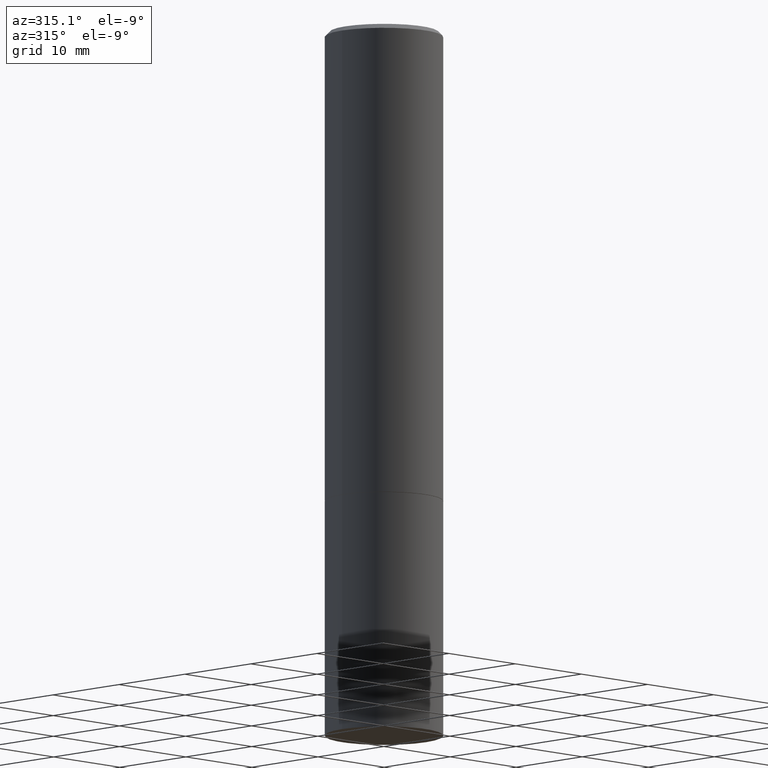
[diagram: clean part render]
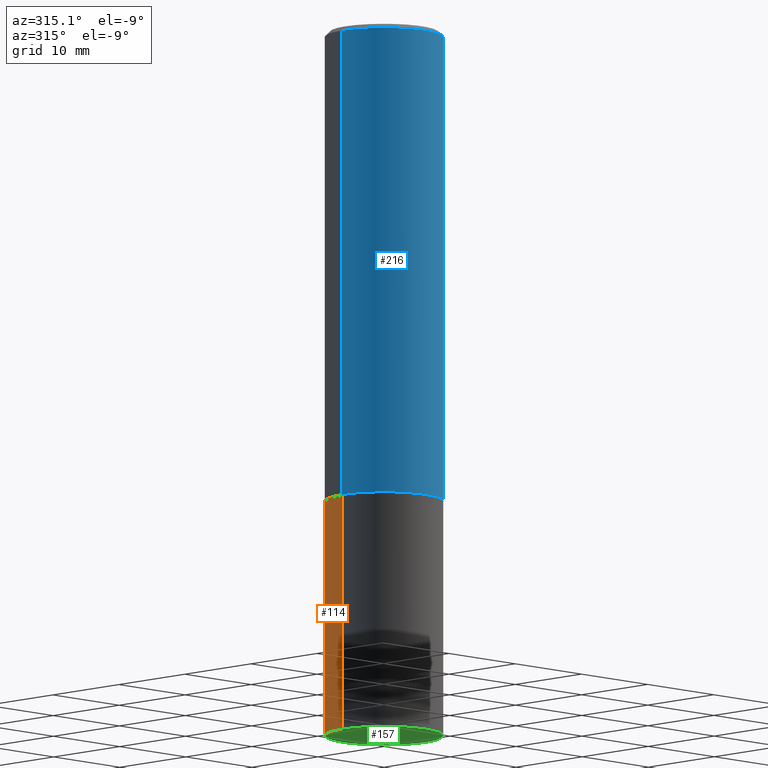
[diagram: same view with three faces highlighted in distinct colors, each labeled with its STEP entity id]
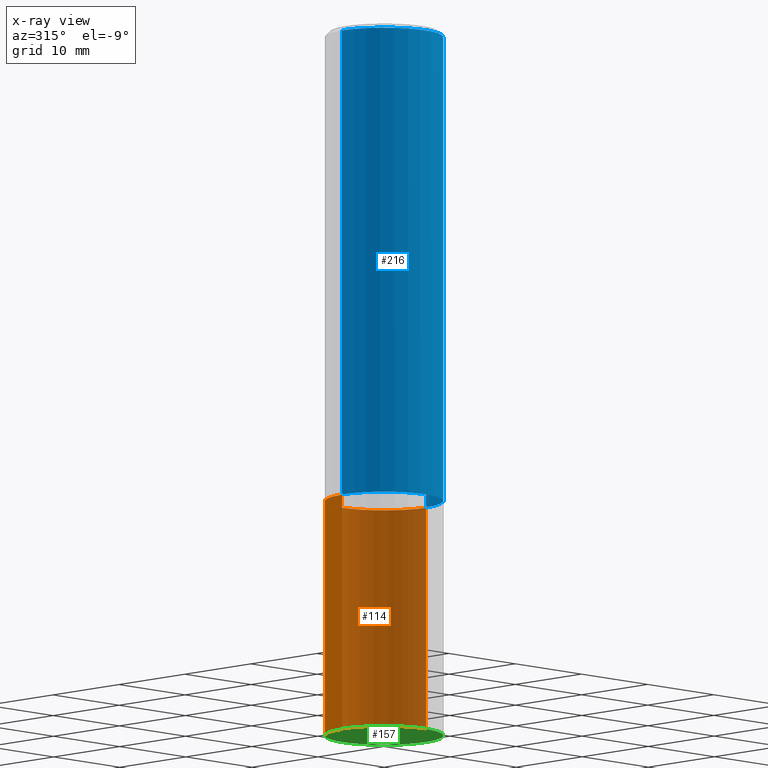
[diagram: x-ray of the same camera — body ghosted, the three highlighted faces saturated]
A machine part, auxiliary view with three faces highlighted in distinct colors.
The next image is the same camera in x-ray (body ghosted, the three faces saturated) — at least one of them is partly hidden behind the body in this view.
Their STEP definitions:

[orange] entity #114 — the highlighted cylindrical surface (partial cylindrical patch) has radius 6.35 mm, axis along (-0, 0, 1).
#8 = DIRECTION ( 'NONE',  ( -2.445468806185136597E-29, 3.491481338843145583E-15, 1.000000000000000000 ) ) ;
#9 = DIRECTION ( 'NONE',  ( -2.445468806185136877E-29, 3.491481338843145188E-15, 1.000000000000000000 ) ) ;
#40 = DIRECTION ( 'NONE',  ( 1.000000000000000000, -6.982962677686262766E-15, 0.000000000000000000 ) ) ;
#51 = CARTESIAN_POINT ( 'NONE',  ( -0.2500000000000000000, -6.952346507707613689E-15, -2.000000000000000444 ) ) ;
#53 = VERTEX_POINT ( 'NONE', #271 ) ;
#60 = VECTOR ( 'NONE', #9, 39.37007874015748143 ) ;
#81 = CARTESIAN_POINT ( 'NONE',  ( 0.000000000000000000, 0.000000000000000000, 0.000000000000000000 ) ) ;
#99 = VERTEX_POINT ( 'NONE', #51 ) ;
#110 = CIRCLE ( 'NONE', #197, 0.2500000000000000000 ) ;
#114 = ADVANCED_FACE ( 'NONE', ( #137 ), #336, .T. ) ;
#119 = VERTEX_POINT ( 'NONE', #343 ) ;
#132 = ORIENTED_EDGE ( 'NONE', *, *, #243, .T. ) ;
#137 = FACE_OUTER_BOUND ( 'NONE', #176, .T. ) ;
#141 = CARTESIAN_POINT ( 'NONE',  ( 0.2500000000000000000, -1.745740669421566678E-15, 1.219044193948983948E-29 ) ) ;
#166 = AXIS2_PLACEMENT_3D ( 'NONE', #295, #8, #40 ) ;
#169 = EDGE_CURVE ( 'NONE', #119, #53, #224, .T. ) ;
#170 = DIRECTION ( 'NONE',  ( -2.445468806185136877E-29, 3.491481338843145188E-15, 1.000000000000000000 ) ) ;
#176 = EDGE_LOOP ( 'NONE', ( #132, #322, #212, #356 ) ) ;
#179 = CARTESIAN_POINT ( 'NONE',  ( -0.2500000000000000000, 1.776356839400250465E-15, -1.229733772563726445E-29 ) ) ;
#196 = DIRECTION ( 'NONE',  ( -2.445468806185136597E-29, 3.491481338843145583E-15, 1.000000000000000000 ) ) ;
#197 = AXIS2_PLACEMENT_3D ( 'NONE', #232, #320, #346 ) ;
#212 = ORIENTED_EDGE ( 'NONE', *, *, #272, .F. ) ;
#213 = CARTESIAN_POINT ( 'NONE',  ( -0.2500000000000000000, -6.952346507707613689E-15, -3.000000000000000444 ) ) ;
#224 = LINE ( 'NONE', #141, #226 ) ;
#226 = VECTOR ( 'NONE', #170, 39.37007874015748143 ) ;
#228 = DIRECTION ( 'NONE',  ( 1.000000000000000000, -6.982962677686266711E-15, 4.876176775795935793E-29 ) ) ;
#232 = CARTESIAN_POINT ( 'NONE',  ( 4.890937612370273754E-29, -6.982962677686291954E-15, -2.000000000000000444 ) ) ;
#243 = EDGE_CURVE ( 'NONE', #119, #268, #314, .T. ) ;
#268 = VERTEX_POINT ( 'NONE', #213 ) ;
#271 = CARTESIAN_POINT ( 'NONE',  ( 0.2500000000000000000, -8.728703347107858632E-15, -2.000000000000000444 ) ) ;
#272 = EDGE_CURVE ( 'NONE', #53, #99, #110, .T. ) ;
#289 = LINE ( 'NONE', #179, #60 ) ;
#295 = CARTESIAN_POINT ( 'NONE',  ( 7.336406418555409790E-29, -1.047444401652943635E-14, -3.000000000000000444 ) ) ;
#314 = CIRCLE ( 'NONE', #166, 0.2500000000000000000 ) ;
#318 = AXIS2_PLACEMENT_3D ( 'NONE', #81, #196, #228 ) ;
#320 = DIRECTION ( 'NONE',  ( -2.445468806185136597E-29, 3.491481338843145583E-15, 1.000000000000000000 ) ) ;
#321 = EDGE_CURVE ( 'NONE', #268, #99, #289, .T. ) ;
#322 = ORIENTED_EDGE ( 'NONE', *, *, #321, .T. ) ;
#336 = CYLINDRICAL_SURFACE ( 'NONE', #318, 0.2500000000000000000 ) ;
#343 = CARTESIAN_POINT ( 'NONE',  ( 0.2500000000000000000, -1.222018468595100303E-14, -3.000000000000000444 ) ) ;
#346 = DIRECTION ( 'NONE',  ( 1.000000000000000000, -6.982962677686266711E-15, 0.000000000000000000 ) ) ;
#356 = ORIENTED_EDGE ( 'NONE', *, *, #169, .F. ) ;

[blue] entity #216 — the highlighted cylindrical surface (partial cylindrical patch) has radius 6.35 mm, axis along (-0, 0, 1).
#2 = CARTESIAN_POINT ( 'NONE',  ( -0.2499999999999998057, 1.675911042644702196E-15, -0.02000000000000005246 ) ) ;
#13 = AXIS2_PLACEMENT_3D ( 'NONE', #256, #173, #87 ) ;
#21 = CIRCLE ( 'NONE', #13, 0.2499999999999998057 ) ;
#24 = DIRECTION ( 'NONE',  ( 1.000000000000000000, -6.982962677686266711E-15, 0.000000000000000000 ) ) ;
#28 = DIRECTION ( 'NONE',  ( -2.445468806185136877E-29, 3.491481338843145188E-15, 1.000000000000000000 ) ) ;
#30 = CARTESIAN_POINT ( 'NONE',  ( -0.2500000000000000000, -1.748293572161903489E-15, -1.999000000000000110 ) ) ;
#31 = DIRECTION ( 'NONE',  ( -2.445468806185136597E-29, 3.491481338843145583E-15, 1.000000000000000000 ) ) ;
#38 = ORIENTED_EDGE ( 'NONE', *, *, #117, .F. ) ;
#41 = VERTEX_POINT ( 'NONE', #105 ) ;
#56 = ORIENTED_EDGE ( 'NONE', *, *, #149, .T. ) ;
#62 = CYLINDRICAL_SURFACE ( 'NONE', #70, 0.2499999999999998890 ) ;
#68 = CARTESIAN_POINT ( 'NONE',  ( 0.2499999999999998057, -1.784954126219744611E-15, -0.02000000000000005246 ) ) ;
#70 = AXIS2_PLACEMENT_3D ( 'NONE', #285, #31, #96 ) ;
#85 = CARTESIAN_POINT ( 'NONE',  ( -0.2499999999999998890, 1.776356839400249676E-15, -1.229733772563726025E-29 ) ) ;
#87 = DIRECTION ( 'NONE',  ( 1.000000000000000000, -6.982962677686266711E-15, 0.000000000000000000 ) ) ;
#96 = DIRECTION ( 'NONE',  ( 1.000000000000000000, -6.982962677686266711E-15, 4.876176775795935793E-29 ) ) ;
#101 = ORIENTED_EDGE ( 'NONE', *, *, #102, .T. ) ;
#102 = EDGE_CURVE ( 'NONE', #152, #41, #181, .T. ) ;
#105 = CARTESIAN_POINT ( 'NONE',  ( 0.2500000000000000000, -8.725211865769015625E-15, -1.999000000000000110 ) ) ;
#113 = FACE_OUTER_BOUND ( 'NONE', #260, .T. ) ;
#117 = EDGE_CURVE ( 'NONE', #206, #276, #21, .T. ) ;
#134 = EDGE_CURVE ( 'NONE', #152, #206, #315, .T. ) ;
#149 = EDGE_CURVE ( 'NONE', #41, #276, #339, .T. ) ;
#152 = VERTEX_POINT ( 'NONE', #30 ) ;
#171 = VECTOR ( 'NONE', #28, 39.37007874015748143 ) ;
#173 = DIRECTION ( 'NONE',  ( -2.445468806185136597E-29, 3.491481338843145583E-15, 1.000000000000000000 ) ) ;
#181 = CIRCLE ( 'NONE', #225, 0.2500000000000000000 ) ;
#184 = ORIENTED_EDGE ( 'NONE', *, *, #134, .F. ) ;
#206 = VERTEX_POINT ( 'NONE', #2 ) ;
#216 = ADVANCED_FACE ( 'NONE', ( #113 ), #62, .T. ) ;
#222 = CARTESIAN_POINT ( 'NONE',  ( 4.888492143564088712E-29, -6.979471196347448158E-15, -1.999000000000000110 ) ) ;
#225 = AXIS2_PLACEMENT_3D ( 'NONE', #222, #278, #24 ) ;
#252 = DIRECTION ( 'NONE',  ( -2.445468806185136877E-29, 3.491481338843145188E-15, 1.000000000000000000 ) ) ;
#256 = CARTESIAN_POINT ( 'NONE',  ( 4.890937612370285420E-31, -6.982962677686308865E-17, -0.02000000000000005246 ) ) ;
#260 = EDGE_LOOP ( 'NONE', ( #184, #101, #56, #38 ) ) ;
#276 = VERTEX_POINT ( 'NONE', #68 ) ;
#278 = DIRECTION ( 'NONE',  ( -2.445468806185136597E-29, 3.491481338843145583E-15, 1.000000000000000000 ) ) ;
#281 = CARTESIAN_POINT ( 'NONE',  ( 0.2499999999999998890, -1.745740669421565889E-15, 1.219044193948983388E-29 ) ) ;
#285 = CARTESIAN_POINT ( 'NONE',  ( 0.000000000000000000, 0.000000000000000000, 0.000000000000000000 ) ) ;
#315 = LINE ( 'NONE', #85, #319 ) ;
#319 = VECTOR ( 'NONE', #252, 39.37007874015748143 ) ;
#339 = LINE ( 'NONE', #281, #171 ) ;

[green] entity #157 — the highlighted planar face has unit normal (0, -0, -1).
#4 = DIRECTION ( 'NONE',  ( 2.438088387897960049E-29, -3.491481338843145188E-15, -1.000000000000000000 ) ) ;
#8 = DIRECTION ( 'NONE',  ( -2.445468806185136597E-29, 3.491481338843145583E-15, 1.000000000000000000 ) ) ;
#40 = DIRECTION ( 'NONE',  ( 1.000000000000000000, -6.982962677686262766E-15, 0.000000000000000000 ) ) ;
#63 = DIRECTION ( 'NONE',  ( -1.000000000000000000, 6.982962677686265922E-15, -4.876176775795935793E-29 ) ) ;
#119 = VERTEX_POINT ( 'NONE', #343 ) ;
#139 = FACE_OUTER_BOUND ( 'NONE', #237, .T. ) ;
#157 = ADVANCED_FACE ( 'NONE', ( #139 ), #200, .T. ) ;
#166 = AXIS2_PLACEMENT_3D ( 'NONE', #295, #8, #40 ) ;
#168 = CARTESIAN_POINT ( 'NONE',  ( 1.745740669421639647E-15, 0.2499999999999895084, -3.000000000000001332 ) ) ;
#183 = DIRECTION ( 'NONE',  ( 1.000000000000000000, -6.982962677686262766E-15, 0.000000000000000000 ) ) ;
#190 = ORIENTED_EDGE ( 'NONE', *, *, #229, .F. ) ;
#200 = PLANE ( 'NONE',  #219 ) ;
#213 = CARTESIAN_POINT ( 'NONE',  ( -0.2500000000000000000, -6.952346507707613689E-15, -3.000000000000000444 ) ) ;
#219 = AXIS2_PLACEMENT_3D ( 'NONE', #168, #4, #63 ) ;
#229 = EDGE_CURVE ( 'NONE', #268, #119, #310, .T. ) ;
#234 = CARTESIAN_POINT ( 'NONE',  ( 7.336406418555409790E-29, -1.047444401652943635E-14, -3.000000000000000444 ) ) ;
#235 = ORIENTED_EDGE ( 'NONE', *, *, #243, .F. ) ;
#237 = EDGE_LOOP ( 'NONE', ( #235, #190 ) ) ;
#243 = EDGE_CURVE ( 'NONE', #119, #268, #314, .T. ) ;
#264 = DIRECTION ( 'NONE',  ( -2.445468806185136597E-29, 3.491481338843145583E-15, 1.000000000000000000 ) ) ;
#268 = VERTEX_POINT ( 'NONE', #213 ) ;
#295 = CARTESIAN_POINT ( 'NONE',  ( 7.336406418555409790E-29, -1.047444401652943635E-14, -3.000000000000000444 ) ) ;
#310 = CIRCLE ( 'NONE', #355, 0.2500000000000000000 ) ;
#314 = CIRCLE ( 'NONE', #166, 0.2500000000000000000 ) ;
#343 = CARTESIAN_POINT ( 'NONE',  ( 0.2500000000000000000, -1.222018468595100303E-14, -3.000000000000000444 ) ) ;
#355 = AXIS2_PLACEMENT_3D ( 'NONE', #234, #264, #183 ) ;